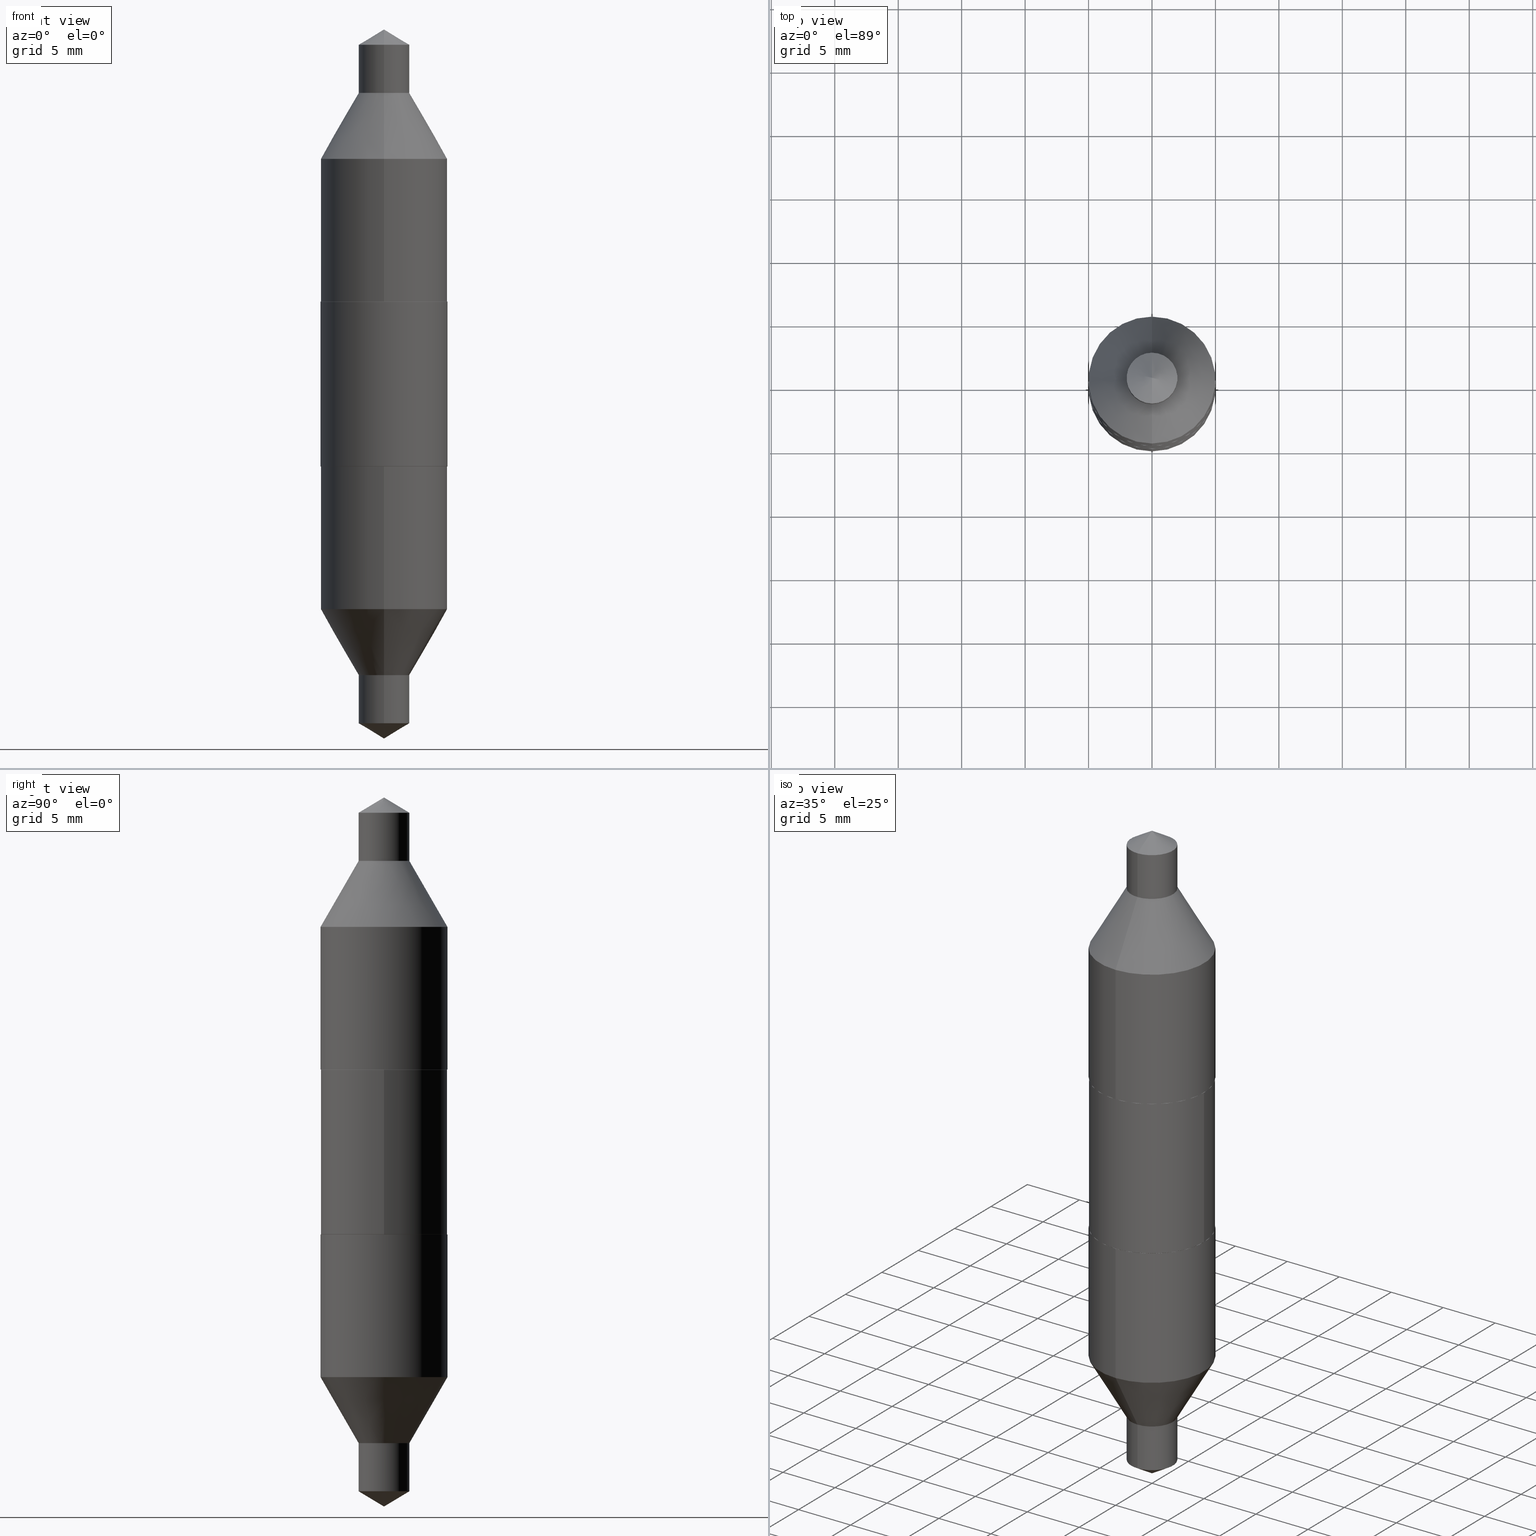
[diagram: canonical four-view strip — front | top / right | iso, engineering-drawing reading convention]
A machine part, canonical four-view strip (front | top / right | iso — engineering-drawing reading convention). The complete STEP part file that produces these views, byte-faithful:
ISO-10303-21;
HEADER;
FILE_DESCRIPTION (( 'STEP AP203' ),
    '1' );
FILE_NAME ('67051.STEP',
    '2024-04-19T15:18:13',
    ( '' ),
    ( '' ),
    'SwSTEP 2.0',
    'SolidWorks 2023',
    '' );
FILE_SCHEMA (( 'CONFIG_CONTROL_DESIGN' ));
ENDSEC;

DATA;
#1 = EDGE_LOOP ( 'NONE', ( #16, #548, #135 ) ) ;
#2 = LINE ( 'NONE', #488, #254 ) ;
#3 = ORIENTED_EDGE ( 'NONE', *, *, #476, .T. ) ;
#4 = ORIENTED_EDGE ( 'NONE', *, *, #221, .F. ) ;
#5 = CIRCLE ( 'NONE', #91, 0.1968500000000000250 ) ;
#6 = DIRECTION ( 'NONE',  ( 2.459654028991430125E-29, -3.471167292411791598E-15, -1.000000000000000000 ) ) ;
#7 = AXIS2_PLACEMENT_3D ( 'NONE', #563, #497, #79 ) ;
#8 = ORIENTED_EDGE ( 'NONE', *, *, #673, .T. ) ;
#9 = VERTEX_POINT ( 'NONE', #255 ) ;
#10 = DIRECTION ( 'NONE',  ( -6.982962677686265922E-15, -1.000000000000000000, 3.469453890861393995E-15 ) ) ;
#11 = FACE_OUTER_BOUND ( 'NONE', #283, .T. ) ;
#12 = ORIENTED_EDGE ( 'NONE', *, *, #15, .T. ) ;
#13 = ORIENTED_EDGE ( 'NONE', *, *, #15, .F. ) ;
#14 = FACE_OUTER_BOUND ( 'NONE', #297, .T. ) ;
#15 = EDGE_CURVE ( 'NONE', #607, #173, #60, .T. ) ;
#16 = ORIENTED_EDGE ( 'NONE', *, *, #78, .F. ) ;
#17 = VECTOR ( 'NONE', #628, 39.37007874015748143 ) ;
#18 = AXIS2_PLACEMENT_3D ( 'NONE', #554, #507, #349 ) ;
#19 = CARTESIAN_POINT ( 'NONE',  ( 1.398703375343769621E-15, 0.1968499999999977212, -0.6985447996261132664 ) ) ;
#20 = EDGE_CURVE ( 'NONE', #188, #33, #371, .T. ) ;
#21 = LINE ( 'NONE', #286, #561 ) ;
#22 = EDGE_CURVE ( 'NONE', #611, #684, #425, .T. ) ;
#23 = DIRECTION ( 'NONE',  ( 2.459654028991429845E-29, -3.471167292411791598E-15, -1.000000000000000000 ) ) ;
#24 = EDGE_LOOP ( 'NONE', ( #59, #511, #500, #215 ) ) ;
#25 = CALENDAR_DATE ( 2024, 19, 4 ) ;
#26 = FACE_OUTER_BOUND ( 'NONE', #24, .T. ) ;
#27 = CARTESIAN_POINT ( 'NONE',  ( -1.714547113792967986E-29, 2.429966256632936754E-15, 0.6985447996261126002 ) ) ;
#28 = ADVANCED_FACE ( 'NONE', ( #448 ), #179, .T. ) ;
#29 = CARTESIAN_POINT ( 'NONE',  ( -0.1963500000000000800, 5.013314389211111688E-16, -0.2560000000000002274 ) ) ;
#30 = CIRCLE ( 'NONE', #578, 0.07875000000000001443 ) ;
#31 = ORIENTED_EDGE ( 'NONE', *, *, #37, .F. ) ;
#32 = CARTESIAN_POINT ( 'NONE',  ( 0.1963500000000000800, -2.264923944507545110E-15, -0.2560000000000002274 ) ) ;
#33 = VERTEX_POINT ( 'NONE', #333 ) ;
#34 = CARTESIAN_POINT ( 'NONE',  ( -2.585602662008955522E-29, 3.659236508954140551E-15, 1.052682226251580033 ) ) ;
#35 = DIRECTION ( 'NONE',  ( -2.445468806185136597E-29, 3.491481338843145583E-15, 1.000000000000000000 ) ) ;
#36 = DIRECTION ( 'NONE',  ( -2.445468806185136597E-29, 3.491481338843145583E-15, 1.000000000000000000 ) ) ;
#37 = EDGE_CURVE ( 'NONE', #640, #199, #227, .T. ) ;
#38 = CARTESIAN_POINT ( 'NONE',  ( 0.1963500000000000800, -2.264923944507545110E-15, -0.2560000000000002274 ) ) ;
#39 = DIRECTION ( 'NONE',  ( 3.552713678800443343E-15, 0.4999999999999979461, 0.8660254037844399289 ) ) ;
#40 = ADVANCED_FACE ( 'NONE', ( #11 ), #663, .T. ) ;
#41 = AXIS2_PLACEMENT_3D ( 'NONE', #71, #172, #63 ) ;
#42 = ORIENTED_EDGE ( 'NONE', *, *, #660, .F. ) ;
#43 = DIRECTION ( 'NONE',  ( 1.000000000000000000, -6.982962677686266711E-15, 0.000000000000000000 ) ) ;
#44 = ORIENTED_EDGE ( 'NONE', *, *, #89, .T. ) ;
#45 = ORIENTED_EDGE ( 'NONE', *, *, #364, .F. ) ;
#46 = DIRECTION ( 'NONE',  ( -2.459654028991429845E-29, 3.471167292411791598E-15, 1.000000000000000000 ) ) ;
#47 = VERTEX_POINT ( 'NONE', #98 ) ;
#48 = ADVANCED_FACE ( 'NONE', ( #273 ), #157, .T. ) ;
#49 = DIRECTION ( 'NONE',  ( -2.459654028991429285E-29, 3.471167292411791598E-15, 1.000000000000000000 ) ) ;
#50 = DIRECTION ( 'NONE',  ( -5.985567269335953901E-15, -0.8571673007021122226, 0.5150380749100544886 ) ) ;
#51 = VECTOR ( 'NONE', #316, 39.37007874015748854 ) ;
#52 =( GEOMETRIC_REPRESENTATION_CONTEXT ( 3 ) GLOBAL_UNCERTAINTY_ASSIGNED_CONTEXT ( ( #312 ) ) GLOBAL_UNIT_ASSIGNED_CONTEXT ( ( #606, #666, #241 ) ) REPRESENTATION_CONTEXT ( 'NONE', 'WORKASPACE' ) );
#53 = FACE_OUTER_BOUND ( 'NONE', #287, .T. ) ;
#54 = CARTESIAN_POINT ( 'NONE',  ( 6.260400143833955248E-30, -8.938192227438461148E-16, -0.2560000000000002274 ) ) ;
#55 = CALENDAR_DATE ( 2024, 19, 4 ) ;
#56 = DIRECTION ( 'NONE',  ( 2.431283583378843068E-29, -3.511795385274499567E-15, -1.000000000000000000 ) ) ;
#57 = VERTEX_POINT ( 'NONE', #433 ) ;
#58 = DIRECTION ( 'NONE',  ( -2.431283583378843348E-29, 3.511795385274499567E-15, 1.000000000000000000 ) ) ;
#59 = ORIENTED_EDGE ( 'NONE', *, *, #37, .T. ) ;
#60 = CIRCLE ( 'NONE', #265, 0.07875000000000000056 ) ;
#61 = CONICAL_SURFACE ( 'NONE', #113, 0.07875000000000000056, 0.5235987755982929315 ) ;
#62 = LINE ( 'NONE', #156, #432 ) ;
#63 = DIRECTION ( 'NONE',  ( -6.982962677686264344E-15, -1.000000000000000000, 3.469013325287953293E-15 ) ) ;
#64 = EDGE_CURVE ( 'NONE', #65, #57, #280, .T. ) ;
#65 = VERTEX_POINT ( 'NONE', #483 ) ;
#66 = CARTESIAN_POINT ( 'NONE',  ( 6.571296279605704530E-30, -8.492971265904178763E-16, -0.2560000000000002829 ) ) ;
#67 = ORIENTED_EDGE ( 'NONE', *, *, #510, .F. ) ;
#68 = EDGE_CURVE ( 'NONE', #65, #332, #419, .T. ) ;
#69 = CARTESIAN_POINT ( 'NONE',  ( 2.674411941716728216E-29, -3.862974923801950273E-15, -1.100000000000000089 ) ) ;
#70 = ADVANCED_BREP_SHAPE_REPRESENTATION ( '67051', ( #123, #583, #112, #18 ), #52 ) ;
#71 = CARTESIAN_POINT ( 'NONE',  ( 2.199323621187845058E-29, -3.166302016554974443E-15, -0.9031000000000001249 ) ) ;
#72 = ORIENTED_EDGE ( 'NONE', *, *, #64, .T. ) ;
#73 = LOCAL_TIME ( 11, 18, 13.00000000000000000, #263 ) ;
#74 = CARTESIAN_POINT ( 'NONE',  ( -2.217682136543749536E-29, 3.140011577663515512E-15, 0.9031000000000001249 ) ) ;
#75 = ORIENTED_EDGE ( 'NONE', *, *, #186, .F. ) ;
#76 = PERSON_AND_ORGANIZATION ( #484, #647 ) ;
#77 = CARTESIAN_POINT ( 'NONE',  ( -6.260400143833954547E-30, 8.938192227438459176E-16, 0.2560000000000002274 ) ) ;
#78 = EDGE_CURVE ( 'NONE', #579, #106, #525, .T. ) ;
#79 = DIRECTION ( 'NONE',  ( -6.982962677686264344E-15, -1.000000000000000000, 3.469013325287953293E-15 ) ) ;
#80 = CARTESIAN_POINT ( 'NONE',  ( -6.260400143833955248E-30, 8.938192227438461148E-16, 0.2560000000000002274 ) ) ;
#81 = AXIS2_PLACEMENT_3D ( 'NONE', #521, #35, #496 ) ;
#82 = FACE_OUTER_BOUND ( 'NONE', #623, .T. ) ;
#83 = CIRCLE ( 'NONE', #616, 0.1963500000000000800 ) ;
#84 = CC_DESIGN_APPROVAL ( #266, ( #243 ) ) ;
#85 = VECTOR ( 'NONE', #556, 39.37007874015748854 ) ;
#86 = APPROVAL ( #588, 'UNSPECIFIED' ) ;
#87 = CARTESIAN_POINT ( 'NONE',  ( 0.1968500000000000527, -2.266669685176966220E-15, -0.2555000000000003380 ) ) ;
#88 = CARTESIAN_POINT ( 'NONE',  ( 5.595524044111006926E-16, 0.07874999999999683642, -0.9031000000000003469 ) ) ;
#89 = EDGE_CURVE ( 'NONE', #644, #435, #124, .T. ) ;
#90 = DIRECTION ( 'NONE',  ( 2.459654028991429845E-29, -3.471167292411791598E-15, -1.000000000000000000 ) ) ;
#91 = AXIS2_PLACEMENT_3D ( 'NONE', #249, #134, #680 ) ;
#92 = AXIS2_PLACEMENT_3D ( 'NONE', #573, #414, #369 ) ;
#93 = APPROVAL_PERSON_ORGANIZATION ( #154, #266, #534 ) ;
#94 = CALENDAR_DATE ( 2024, 19, 4 ) ;
#95 = ORIENTED_EDGE ( 'NONE', *, *, #325, .T. ) ;
#96 = CARTESIAN_POINT ( 'NONE',  ( -2.217682136543749536E-29, 3.140011577663515512E-15, 0.9031000000000001249 ) ) ;
#97 = APPROVAL_ROLE ( '' ) ;
#98 = CARTESIAN_POINT ( 'NONE',  ( 5.595524044111044397E-16, 0.07874999999999632294, -1.052682226251580477 ) ) ;
#99 = EDGE_CURVE ( 'NONE', #417, #125, #5, .T. ) ;
#100 = CARTESIAN_POINT ( 'NONE',  ( 0.000000000000000000, 0.000000000000000000, 0.000000000000000000 ) ) ;
#101 = PERSON_AND_ORGANIZATION_ROLE ( 'design_supplier' ) ;
#102 = DIRECTION ( 'NONE',  ( -6.982962677686265133E-15, -1.000000000000000000, 3.469453890861392812E-15 ) ) ;
#103 = AXIS2_PLACEMENT_3D ( 'NONE', #566, #301, #515 ) ;
#104 = CARTESIAN_POINT ( 'NONE',  ( -1.374596203102559949E-15, -0.1968499999999977490, 0.6985447996261132664 ) ) ;
#105 = PRODUCT_RELATED_PRODUCT_CATEGORY ( 'detail', '', ( #428 ) ) ;
#106 = VERTEX_POINT ( 'NONE', #465 ) ;
#107 = DIRECTION ( 'NONE',  ( -2.438088387897960049E-29, 3.491481338843145188E-15, 1.000000000000000000 ) ) ;
#108 = EDGE_CURVE ( 'NONE', #472, #121, #490, .T. ) ;
#109 = ORIENTED_EDGE ( 'NONE', *, *, #660, .T. ) ;
#110 = CARTESIAN_POINT ( 'NONE',  ( 1.350489030861320696E-15, 0.1968500000000026340, 0.6985447996261119341 ) ) ;
#111 = ORIENTED_EDGE ( 'NONE', *, *, #155, .T. ) ;
#112 = MANIFOLD_SOLID_BREP ( 'Body-Move/Copy2[3]', #455 ) ;
#113 = AXIS2_PLACEMENT_3D ( 'NONE', #126, #513, #454 ) ;
#114 = ORIENTED_EDGE ( 'NONE', *, *, #137, .F. ) ;
#115 = ORIENTED_EDGE ( 'NONE', *, *, #614, .F. ) ;
#116 = EDGE_CURVE ( 'NONE', #684, #9, #202, .T. ) ;
#117 = CARTESIAN_POINT ( 'NONE',  ( -1.374596203102547722E-15, -0.1968499999999991368, 0.2560000000000009490 ) ) ;
#118 = ORIENTED_EDGE ( 'NONE', *, *, #651, .F. ) ;
#119 = LINE ( 'NONE', #29, #347 ) ;
#120 = ORIENTED_EDGE ( 'NONE', *, *, #642, .T. ) ;
#121 = VERTEX_POINT ( 'NONE', #38 ) ;
#122 = CARTESIAN_POINT ( 'NONE',  ( 1.398703375343764099E-15, 0.1968499999999992200, -0.2560000000000008935 ) ) ;
#123 = MANIFOLD_SOLID_BREP ( 'Body-Move/Copy2[1]', #568 ) ;
#124 = CIRCLE ( 'NONE', #315, 0.1963500000000000800 ) ;
#125 = VERTEX_POINT ( 'NONE', #415 ) ;
#126 = CARTESIAN_POINT ( 'NONE',  ( -2.217682136543749536E-29, 3.140011577663515512E-15, 0.9031000000000001249 ) ) ;
#127 = FACE_OUTER_BOUND ( 'NONE', #339, .T. ) ;
#128 = DIRECTION ( 'NONE',  ( -0.7071067811865715536, 7.493145998870439357E-15, 0.7071067811865232589 ) ) ;
#129 = CARTESIAN_POINT ( 'NONE',  ( -6.260400143833956649E-30, 8.938192227438463120E-16, 0.2560000000000002829 ) ) ;
#130 = DIRECTION ( 'NONE',  ( -6.982962677686264344E-15, -1.000000000000000000, 3.469013325287953293E-15 ) ) ;
#131 = CARTESIAN_POINT ( 'NONE',  ( 0.1968500000000000527, -1.374596203102542003E-15, 9.598753983154302260E-30 ) ) ;
#132 = AXIS2_PLACEMENT_3D ( 'NONE', #567, #398, #181 ) ;
#133 = AXIS2_PLACEMENT_3D ( 'NONE', #209, #49, #426 ) ;
#134 = DIRECTION ( 'NONE',  ( -2.431283583378843348E-29, 3.511795385274499567E-15, 1.000000000000000000 ) ) ;
#135 = ORIENTED_EDGE ( 'NONE', *, *, #487, .T. ) ;
#136 = EDGE_CURVE ( 'NONE', #236, #593, #142, .T. ) ;
#137 = EDGE_CURVE ( 'NONE', #332, #380, #193, .T. ) ;
#138 = CARTESIAN_POINT ( 'NONE',  ( 6.248172799803031437E-30, -8.920734820744248085E-16, -0.2555000000000003380 ) ) ;
#139 = DIRECTION ( 'NONE',  ( 1.000000000000000000, -6.982962677686265922E-15, 0.000000000000000000 ) ) ;
#140 = EDGE_LOOP ( 'NONE', ( #498, #475, #394, #118 ) ) ;
#141 = DIRECTION ( 'NONE',  ( -2.445468806185136597E-29, 3.491481338843145583E-15, 1.000000000000000000 ) ) ;
#142 = LINE ( 'NONE', #260, #551 ) ;
#143 = DIRECTION ( 'NONE',  ( -6.982962677686264344E-15, -1.000000000000000000, 3.469013325287952504E-15 ) ) ;
#144 = AXIS2_PLACEMENT_3D ( 'NONE', #310, #473, #196 ) ;
#145 = ORIENTED_EDGE ( 'NONE', *, *, #361, .T. ) ;
#146 = CC_DESIGN_PERSON_AND_ORGANIZATION_ASSIGNMENT ( #586, #101, ( #243 ) ) ;
#147 = CIRCLE ( 'NONE', #203, 0.1968500000000000250 ) ;
#148 = CC_DESIGN_SECURITY_CLASSIFICATION ( #400, ( #243 ) ) ;
#149 = CARTESIAN_POINT ( 'NONE',  ( -0.1968500000000000527, 1.398703375343757590E-15, -9.682923725166785079E-30 ) ) ;
#150 = CARTESIAN_POINT ( 'NONE',  ( 0.1968500000000000527, -4.825227210281171943E-16, 0.2555000000000003380 ) ) ;
#151 = CALENDAR_DATE ( 2024, 19, 4 ) ;
#152 = FACE_OUTER_BOUND ( 'NONE', #250, .T. ) ;
#153 = EDGE_LOOP ( 'NONE', ( #411, #210, #288, #225 ) ) ;
#154 = PERSON_AND_ORGANIZATION ( #484, #647 ) ;
#155 = EDGE_CURVE ( 'NONE', #380, #57, #654, .T. ) ;
#156 = CARTESIAN_POINT ( 'NONE',  ( -5.499083108678155324E-16, -0.07874999999999685030, 0.9031000000000003469 ) ) ;
#157 = CONICAL_SURFACE ( 'NONE', #599, 65.52281426576890055, 1.029744258676657642 ) ;
#158 = AXIS2_PLACEMENT_3D ( 'NONE', #615, #509, #564 ) ;
#159 = AXIS2_PLACEMENT_3D ( 'NONE', #600, #480, #10 ) ;
#160 = EDGE_CURVE ( 'NONE', #644, #380, #378, .T. ) ;
#161 = LINE ( 'NONE', #327, #670 ) ;
#162 = DIRECTION ( 'NONE',  ( 6.982962677686265922E-15, 1.000000000000000000, -3.511795385274499567E-15 ) ) ;
#163 = ORIENTED_EDGE ( 'NONE', *, *, #553, .F. ) ;
#164 = DIRECTION ( 'NONE',  ( -6.982962677686264344E-15, -1.000000000000000000, 3.469013325287952504E-15 ) ) ;
#165 = ORIENTED_EDGE ( 'NONE', *, *, #542, .F. ) ;
#166 = ADVANCED_FACE ( 'NONE', ( #53 ), #456, .T. ) ;
#167 = CIRCLE ( 'NONE', #635, 0.07875000000000001443 ) ;
#168 = ORIENTED_EDGE ( 'NONE', *, *, #208, .T. ) ;
#169 = DIRECTION ( 'NONE',  ( -1.000000000000000000, 6.982962677686265922E-15, -4.876176775795935793E-29 ) ) ;
#170 = ORIENTED_EDGE ( 'NONE', *, *, #89, .F. ) ;
#171 = DIRECTION ( 'NONE',  ( -2.445468806185136597E-29, 3.491481338843145583E-15, 1.000000000000000000 ) ) ;
#172 = DIRECTION ( 'NONE',  ( -2.431283583378843348E-29, 3.511795385274499567E-15, 1.000000000000000000 ) ) ;
#173 = VERTEX_POINT ( 'NONE', #442 ) ;
#174 = LINE ( 'NONE', #295, #305 ) ;
#175 = CARTESIAN_POINT ( 'NONE',  ( 6.260400143833954547E-30, -8.938192227438459176E-16, -0.2560000000000002274 ) ) ;
#176 = CC_DESIGN_DATE_AND_TIME_ASSIGNMENT ( #303, #633, ( #400 ) ) ;
#177 = ORIENTED_EDGE ( 'NONE', *, *, #559, .T. ) ;
#178 = DIRECTION ( 'NONE',  ( 1.000000000000000000, -6.982962677686266711E-15, 0.000000000000000000 ) ) ;
#179 = CONICAL_SURFACE ( 'NONE', #251, 0.1963500000000000800, 0.7853981633974824739 ) ;
#180 = CC_DESIGN_APPROVAL ( #86, ( #400 ) ) ;
#181 = DIRECTION ( 'NONE',  ( -6.982962677686264344E-15, -1.000000000000000000, 3.469013325287952504E-15 ) ) ;
#182 = PERSON_AND_ORGANIZATION ( #484, #647 ) ;
#183 = CARTESIAN_POINT ( 'NONE',  ( -2.585602662008955522E-29, 3.659236508954140551E-15, 1.052682226251580033 ) ) ;
#184 = EDGE_CURVE ( 'NONE', #125, #417, #147, .T. ) ;
#185 = DIRECTION ( 'NONE',  ( -6.982962677686263555E-15, -1.000000000000000000, 3.468864327941569365E-15 ) ) ;
#186 = EDGE_CURVE ( 'NONE', #121, #472, #83, .T. ) ;
#187 = DIMENSIONAL_EXPONENTS ( 1.000000000000000000, 0.000000000000000000, 0.000000000000000000, 0.000000000000000000, 0.000000000000000000, 0.000000000000000000, 0.000000000000000000 ) ;
#188 = VERTEX_POINT ( 'NONE', #69 ) ;
#189 = VECTOR ( 'NONE', #686, 39.37007874015749564 ) ;
#190 = LINE ( 'NONE', #363, #526 ) ;
#191 = CONICAL_SURFACE ( 'NONE', #681, 65.52281426576890055, 1.029744258676657642 ) ;
#192 = VECTOR ( 'NONE', #58, 39.37007874015748143 ) ;
#193 = LINE ( 'NONE', #131, #240 ) ;
#194 = FACE_OUTER_BOUND ( 'NONE', #532, .T. ) ;
#195 = EDGE_LOOP ( 'NONE', ( #44, #3 ) ) ;
#196 = DIRECTION ( 'NONE',  ( -6.982962677686265133E-15, -1.000000000000000000, 3.469453890861395573E-15 ) ) ;
#197 = CC_DESIGN_PERSON_AND_ORGANIZATION_ASSIGNMENT ( #259, #630, ( #400 ) ) ;
#198 = CARTESIAN_POINT ( 'NONE',  ( -6.260400143833954547E-30, 8.938192227438459176E-16, 0.2560000000000002274 ) ) ;
#199 = VERTEX_POINT ( 'NONE', #19 ) ;
#200 = DATE_AND_TIME ( #94, #294 ) ;
#201 = CARTESIAN_POINT ( 'NONE',  ( -6.260400143833955248E-30, 8.938192227438461148E-16, 0.2560000000000002274 ) ) ;
#202 = CIRCLE ( 'NONE', #144, 0.1968500000000000250 ) ;
#203 = AXIS2_PLACEMENT_3D ( 'NONE', #352, #555, #658 ) ;
#204 = CARTESIAN_POINT ( 'NONE',  ( 6.248172799803031437E-30, -8.920734820744248085E-16, -0.2555000000000003380 ) ) ;
#205 = DIRECTION ( 'NONE',  ( -2.445468806185136597E-29, 3.491481338843145583E-15, 1.000000000000000000 ) ) ;
#206 = ORIENTED_EDGE ( 'NONE', *, *, #409, .T. ) ;
#207 = COORDINATED_UNIVERSAL_TIME_OFFSET ( 5, 0, .BEHIND. ) ;
#208 = EDGE_CURVE ( 'NONE', #106, #321, #174, .T. ) ;
#209 = CARTESIAN_POINT ( 'NONE',  ( -6.880613059849022494E-30, 8.050012031377942843E-16, 0.2560000000000002274 ) ) ;
#210 = ORIENTED_EDGE ( 'NONE', *, *, #211, .T. ) ;
#211 = EDGE_CURVE ( 'NONE', #472, #65, #119, .T. ) ;
#212 = CARTESIAN_POINT ( 'NONE',  ( -5.949504008062207368E-30, 9.383413188972745506E-16, 0.2560000000000002829 ) ) ;
#213 = CIRCLE ( 'NONE', #445, 0.1968500000000001915 ) ;
#214 = AXIS2_PLACEMENT_3D ( 'NONE', #437, #652, #164 ) ;
#215 = ORIENTED_EDGE ( 'NONE', *, *, #522, .F. ) ;
#216 = FACE_OUTER_BOUND ( 'NONE', #575, .T. ) ;
#217 = ORIENTED_EDGE ( 'NONE', *, *, #392, .F. ) ;
#218 = ORIENTED_EDGE ( 'NONE', *, *, #221, .T. ) ;
#219 = DIRECTION ( 'NONE',  ( 1.000000000000000000, -6.982962677686266711E-15, 0.000000000000000000 ) ) ;
#220 = CARTESIAN_POINT ( 'NONE',  ( -1.374596203102525634E-15, -0.1968500000000026340, -0.6985447996261119341 ) ) ;
#221 = EDGE_CURVE ( 'NONE', #9, #684, #443, .T. ) ;
#222 = EDGE_LOOP ( 'NONE', ( #650, #691, #459, #163 ) ) ;
#223 = PERSON_AND_ORGANIZATION_ROLE ( 'design_owner' ) ;
#224 = ORIENTED_EDGE ( 'NONE', *, *, #662, .T. ) ;
#225 = ORIENTED_EDGE ( 'NONE', *, *, #444, .F. ) ;
#226 = CARTESIAN_POINT ( 'NONE',  ( 2.199323621187845058E-29, -3.166302016554974443E-15, -0.9031000000000001249 ) ) ;
#227 = CIRCLE ( 'NONE', #385, 0.1968500000000001915 ) ;
#228 = CONICAL_SURFACE ( 'NONE', #580, 65.52281426576890055, 1.029744258676657642 ) ;
#229 = PLANE ( 'NONE',  #604 ) ;
#230 = ORIENTED_EDGE ( 'NONE', *, *, #20, .F. ) ;
#231 = DIRECTION ( 'NONE',  ( 1.000000000000000000, -6.982962677686265922E-15, 0.000000000000000000 ) ) ;
#232 = CC_DESIGN_PERSON_AND_ORGANIZATION_ASSIGNMENT ( #182, #300, ( #610 ) ) ;
#233 = DIRECTION ( 'NONE',  ( -3.491481338843117578E-15, -0.4999999999999917843, 0.8660254037844432595 ) ) ;
#234 = EDGE_LOOP ( 'NONE', ( #439, #72, #536, #114 ) ) ;
#235 = DIRECTION ( 'NONE',  ( 2.459654028991430125E-29, -3.471167292411791598E-15, -1.000000000000000000 ) ) ;
#236 = VERTEX_POINT ( 'NONE', #350 ) ;
#237 = ADVANCED_FACE ( 'NONE', ( #26 ), #391, .T. ) ;
#238 = DATE_AND_TIME ( #25, #528 ) ;
#239 = FACE_OUTER_BOUND ( 'NONE', #284, .T. ) ;
#240 = VECTOR ( 'NONE', #359, 39.37007874015748143 ) ;
#241 =( NAMED_UNIT ( * ) SI_UNIT ( $, .STERADIAN. ) SOLID_ANGLE_UNIT ( ) );
#242 = VECTOR ( 'NONE', #292, 39.37007874015748143 ) ;
#243 = PRODUCT_DEFINITION_FORMATION_WITH_SPECIFIED_SOURCE ( 'ANY', '', #428, .NOT_KNOWN. ) ;
#244 = DIRECTION ( 'NONE',  ( 2.459654028991429845E-29, -3.471167292411791598E-15, -1.000000000000000000 ) ) ;
#245 = DIRECTION ( 'NONE',  ( -6.982962677686265922E-15, -1.000000000000000000, 3.469453890861393995E-15 ) ) ;
#246 = EDGE_CURVE ( 'NONE', #199, #125, #612, .T. ) ;
#247 = ORIENTED_EDGE ( 'NONE', *, *, #700, .T. ) ;
#248 = DIRECTION ( 'NONE',  ( -6.982962677686264344E-15, -1.000000000000000000, 3.469013325287952504E-15 ) ) ;
#249 = CARTESIAN_POINT ( 'NONE',  ( 6.260400143833956649E-30, -8.938192227438463120E-16, -0.2560000000000002829 ) ) ;
#250 = EDGE_LOOP ( 'NONE', ( #440, #653 ) ) ;
#251 = AXIS2_PLACEMENT_3D ( 'NONE', #492, #285, #219 ) ;
#252 = CARTESIAN_POINT ( 'NONE',  ( 2.563000432238571047E-29, -3.691604188424359508E-15, -1.052682226251580033 ) ) ;
#253 = AXIS2_PLACEMENT_3D ( 'NONE', #34, #46, #248 ) ;
#254 = VECTOR ( 'NONE', #6, 39.37007874015748143 ) ;
#255 = CARTESIAN_POINT ( 'NONE',  ( 1.350489030861314385E-15, 0.1968500000000009131, 0.2559999999999996168 ) ) ;
#256 = ADVANCED_FACE ( 'NONE', ( #239 ), #341, .T. ) ;
#257 = EDGE_LOOP ( 'NONE', ( #397, #519, #168, #585 ) ) ;
#258 = CARTESIAN_POINT ( 'NONE',  ( -6.260400143833954547E-30, 8.938192227438459176E-16, 0.2560000000000002274 ) ) ;
#259 = PERSON_AND_ORGANIZATION ( #484, #647 ) ;
#260 = CARTESIAN_POINT ( 'NONE',  ( 5.402642173244858016E-16, 0.07875000000000313694, 0.9030999999999999028 ) ) ;
#261 = FACE_OUTER_BOUND ( 'NONE', #1, .T. ) ;
#262 = DIRECTION ( 'NONE',  ( -2.431283583378843348E-29, 3.511795385274499567E-15, 1.000000000000000000 ) ) ;
#263 = COORDINATED_UNIVERSAL_TIME_OFFSET ( 5, 0, .BEHIND. ) ;
#264 = DIRECTION ( 'NONE',  ( 1.000000000000000000, -6.982962677686266711E-15, 0.000000000000000000 ) ) ;
#265 = AXIS2_PLACEMENT_3D ( 'NONE', #537, #262, #478 ) ;
#266 = APPROVAL ( #530, 'UNSPECIFIED' ) ;
#267 = CONICAL_SURFACE ( 'NONE', #399, 0.07875000000000000056, 0.5235987755982929315 ) ;
#268 = CC_DESIGN_APPROVAL ( #461, ( #610 ) ) ;
#269 = DIRECTION ( 'NONE',  ( 2.459654028991430125E-29, -3.471167292411791598E-15, -1.000000000000000000 ) ) ;
#270 = CARTESIAN_POINT ( 'NONE',  ( 5.640187227818888703E-30, -9.826372423498979453E-16, -0.2560000000000002274 ) ) ;
#271 = ADVANCED_FACE ( 'NONE', ( #558 ), #669, .T. ) ;
#272 = DATE_AND_TIME ( #55, #73 ) ;
#273 = FACE_OUTER_BOUND ( 'NONE', #557, .T. ) ;
#274 = DIRECTION ( 'NONE',  ( -2.431283583378843348E-29, 3.511795385274499567E-15, 1.000000000000000000 ) ) ;
#275 = EDGE_LOOP ( 'NONE', ( #436, #247, #370, #562 ) ) ;
#276 = DIRECTION ( 'NONE',  ( -2.431283583378843348E-29, 3.511795385274499567E-15, 1.000000000000000000 ) ) ;
#277 = DIRECTION ( 'NONE',  ( -3.491481338843076163E-15, -0.4999999999999978351, -0.8660254037844399289 ) ) ;
#278 = ORIENTED_EDGE ( 'NONE', *, *, #683, .T. ) ;
#279 = AXIS2_PLACEMENT_3D ( 'NONE', #138, #141, #464 ) ;
#280 = LINE ( 'NONE', #149, #346 ) ;
#281 = CC_DESIGN_DATE_AND_TIME_ASSIGNMENT ( #641, #694, ( #610 ) ) ;
#282 = PLANE ( 'NONE',  #657 ) ;
#283 = EDGE_LOOP ( 'NONE', ( #547, #206, #307, #13 ) ) ;
#284 = EDGE_LOOP ( 'NONE', ( #598, #441, #278, #320 ) ) ;
#285 = DIRECTION ( 'NONE',  ( 2.445468806185136597E-29, -3.491481338843145583E-15, -1.000000000000000000 ) ) ;
#286 = CARTESIAN_POINT ( 'NONE',  ( -5.499083108677714548E-16, -0.07875000000000315081, -0.9030999999999999028 ) ) ;
#287 = EDGE_LOOP ( 'NONE', ( #328, #494, #693 ) ) ;
#288 = ORIENTED_EDGE ( 'NONE', *, *, #413, .F. ) ;
#289 = CARTESIAN_POINT ( 'NONE',  ( 1.701991920624042310E-29, -2.447946007848055488E-15, -0.6985447996261126002 ) ) ;
#290 = FACE_OUTER_BOUND ( 'NONE', #506, .T. ) ;
#291 = ORIENTED_EDGE ( 'NONE', *, *, #522, .T. ) ;
#292 = DIRECTION ( 'NONE',  ( -2.431283583378843348E-29, 3.511795385274499567E-15, 1.000000000000000000 ) ) ;
#293 = ADVANCED_FACE ( 'NONE', ( #354 ), #697, .T. ) ;
#294 = LOCAL_TIME ( 11, 18, 13.00000000000000000, #207 ) ;
#295 = CARTESIAN_POINT ( 'NONE',  ( -5.499083108677997552E-16, -0.07874999999999912625, 0.2560000000000005049 ) ) ;
#296 = ADVANCED_FACE ( 'NONE', ( #82 ), #299, .T. ) ;
#297 = EDGE_LOOP ( 'NONE', ( #527, #12, #8, #217 ) ) ;
#298 = APPROVAL_ROLE ( '' ) ;
#299 = CYLINDRICAL_SURFACE ( 'NONE', #132, 0.07875000000000001443 ) ;
#300 = PERSON_AND_ORGANIZATION_ROLE ( 'creator' ) ;
#301 = DIRECTION ( 'NONE',  ( -2.445468806185136597E-29, 3.491481338843145583E-15, 1.000000000000000000 ) ) ;
#302 = AXIS2_PLACEMENT_3D ( 'NONE', #96, #629, #130 ) ;
#303 = DATE_AND_TIME ( #151, #491 ) ;
#304 = ADVANCED_FACE ( 'NONE', ( #306 ), #61, .T. ) ;
#305 = VECTOR ( 'NONE', #235, 39.37007874015748143 ) ;
#306 = FACE_OUTER_BOUND ( 'NONE', #427, .T. ) ;
#307 = ORIENTED_EDGE ( 'NONE', *, *, #364, .T. ) ;
#308 = CARTESIAN_POINT ( 'NONE',  ( -0.1963500000000000800, 5.039806660952219754E-16, -0.2560000000000002274 ) ) ;
#309 = ORIENTED_EDGE ( 'NONE', *, *, #373, .T. ) ;
#310 = CARTESIAN_POINT ( 'NONE',  ( -6.260400143833956649E-30, 8.938192227438463120E-16, 0.2560000000000002829 ) ) ;
#311 = CYLINDRICAL_SURFACE ( 'NONE', #377, 0.1968500000000000527 ) ;
#312 = UNCERTAINTY_MEASURE_WITH_UNIT (LENGTH_MEASURE( 1.000000000000000082E-05 ), #606, 'distance_accuracy_value', 'NONE');
#313 = ADVANCED_FACE ( 'NONE', ( #14 ), #267, .T. ) ;
#314 = ORIENTED_EDGE ( 'NONE', *, *, #662, .F. ) ;
#315 = AXIS2_PLACEMENT_3D ( 'NONE', #408, #36, #625 ) ;
#316 = DIRECTION ( 'NONE',  ( 0.7071067811865715536, -2.468850131082509496E-15, 0.7071067811865232589 ) ) ;
#317 = ADVANCED_FACE ( 'NONE', ( #619 ), #626, .T. ) ;
#318 = AXIS2_PLACEMENT_3D ( 'NONE', #661, #608, #395 ) ;
#319 = AXIS2_PLACEMENT_3D ( 'NONE', #27, #655, #453 ) ;
#320 = ORIENTED_EDGE ( 'NONE', *, *, #208, .F. ) ;
#321 = VERTEX_POINT ( 'NONE', #672 ) ;
#322 = DIRECTION ( 'NONE',  ( 2.459654028991429845E-29, -3.471167292411791598E-15, -1.000000000000000000 ) ) ;
#323 = ORIENTED_EDGE ( 'NONE', *, *, #78, .T. ) ;
#324 = CARTESIAN_POINT ( 'NONE',  ( -6.248172799803031437E-30, 8.920734820744248085E-16, 0.2555000000000003380 ) ) ;
#325 = EDGE_CURVE ( 'NONE', #106, #331, #167, .T. ) ;
#326 = CARTESIAN_POINT ( 'NONE',  ( 0.000000000000000000, 0.000000000000000000, 0.000000000000000000 ) ) ;
#327 = CARTESIAN_POINT ( 'NONE',  ( 5.595524044110852112E-16, 0.07874999999999912625, -0.2560000000000005049 ) ) ;
#328 = ORIENTED_EDGE ( 'NONE', *, *, #361, .F. ) ;
#329 = DIRECTION ( 'NONE',  ( 1.000000000000000000, -6.982962677686266711E-15, 0.000000000000000000 ) ) ;
#330 = CYLINDRICAL_SURFACE ( 'NONE', #357, 0.1968500000000000527 ) ;
#331 = VERTEX_POINT ( 'NONE', #692 ) ;
#332 = VERTEX_POINT ( 'NONE', #87 ) ;
#333 = CARTESIAN_POINT ( 'NONE',  ( -5.499083108677680035E-16, -0.07875000000000370592, -1.052682226251579811 ) ) ;
#334 = DIRECTION ( 'NONE',  ( -2.445468806185136597E-29, 3.491481338843145583E-15, 1.000000000000000000 ) ) ;
#335 = ORIENTED_EDGE ( 'NONE', *, *, #116, .T. ) ;
#336 = ORIENTED_EDGE ( 'NONE', *, *, #211, .F. ) ;
#337 = ORIENTED_EDGE ( 'NONE', *, *, #444, .T. ) ;
#338 = CIRCLE ( 'NONE', #7, 0.07875000000000000056 ) ;
#339 = EDGE_LOOP ( 'NONE', ( #550, #309, #31, #664 ) ) ;
#340 = ORIENTED_EDGE ( 'NONE', *, *, #642, .F. ) ;
#341 = CYLINDRICAL_SURFACE ( 'NONE', #560, 0.07875000000000001443 ) ;
#342 = DIRECTION ( 'NONE',  ( 2.459654028991430125E-29, -3.471167292411791598E-15, -1.000000000000000000 ) ) ;
#343 = EDGE_LOOP ( 'NONE', ( #613, #4 ) ) ;
#344 = ADVANCED_FACE ( 'NONE', ( #624 ), #311, .T. ) ;
#345 = DIRECTION ( 'NONE',  ( -6.982962677686265133E-15, -1.000000000000000000, 3.469453890861395573E-15 ) ) ;
#346 = VECTOR ( 'NONE', #696, 39.37007874015748143 ) ;
#347 = VECTOR ( 'NONE', #128, 39.37007874015748854 ) ;
#348 = APPROVAL_PERSON_ORGANIZATION ( #76, #461, #298 ) ;
#349 = DIRECTION ( 'NONE',  ( 1.000000000000000000, 0.000000000000000000, 0.000000000000000000 ) ) ;
#350 = CARTESIAN_POINT ( 'NONE',  ( 5.402642173244840266E-16, 0.07875000000000313694, 0.9030999999999999028 ) ) ;
#351 = PERSON_AND_ORGANIZATION ( #484, #647 ) ;
#352 = CARTESIAN_POINT ( 'NONE',  ( 6.260400143833956649E-30, -8.938192227438463120E-16, -0.2560000000000002829 ) ) ;
#353 = EDGE_CURVE ( 'NONE', #321, #236, #656, .T. ) ;
#354 = FACE_OUTER_BOUND ( 'NONE', #275, .T. ) ;
#355 = CIRCLE ( 'NONE', #504, 0.1963500000000000800 ) ;
#356 = EDGE_LOOP ( 'NONE', ( #42, #314, #544, #335 ) ) ;
#357 = AXIS2_PLACEMENT_3D ( 'NONE', #326, #334, #546 ) ;
#358 = DIRECTION ( 'NONE',  ( 6.090539988449790268E-15, 0.8571673007021156643, 0.5150380749100483824 ) ) ;
#359 = DIRECTION ( 'NONE',  ( -2.445468806185136877E-29, 3.491481338843145188E-15, 1.000000000000000000 ) ) ;
#360 = CARTESIAN_POINT ( 'NONE',  ( 6.260400143833955248E-30, -8.938192227438461148E-16, -0.2560000000000002274 ) ) ;
#361 = EDGE_CURVE ( 'NONE', #188, #47, #190, .T. ) ;
#362 = LINE ( 'NONE', #32, #51 ) ;
#363 = CARTESIAN_POINT ( 'NONE',  ( 2.681738462275316564E-29, -3.852574132029096434E-15, -1.100000000000000089 ) ) ;
#364 = EDGE_CURVE ( 'NONE', #33, #173, #412, .T. ) ;
#365 = SHAPE_DEFINITION_REPRESENTATION ( #687, #70 ) ;
#366 = CYLINDRICAL_SURFACE ( 'NONE', #431, 0.1968500000000001082 ) ;
#367 = AXIS2_PLACEMENT_3D ( 'NONE', #80, #665, #178 ) ;
#368 = VECTOR ( 'NONE', #342, 39.37007874015748143 ) ;
#369 = DIRECTION ( 'NONE',  ( -6.982962677686265133E-15, -1.000000000000000000, 3.469453890861392812E-15 ) ) ;
#370 = ORIENTED_EDGE ( 'NONE', *, *, #651, .T. ) ;
#371 = LINE ( 'NONE', #457, #679 ) ;
#372 = PERSON_AND_ORGANIZATION ( #484, #647 ) ;
#373 = EDGE_CURVE ( 'NONE', #607, #199, #678, .T. ) ;
#374 = PLANE ( 'NONE',  #133 ) ;
#375 = COORDINATED_UNIVERSAL_TIME_OFFSET ( 5, 0, .BEHIND. ) ;
#376 = DIRECTION ( 'NONE',  ( -1.000000000000000000, 6.982962677686265922E-15, -4.876176775795935793E-29 ) ) ;
#377 = AXIS2_PLACEMENT_3D ( 'NONE', #100, #676, #474 ) ;
#378 = LINE ( 'NONE', #383, #634 ) ;
#379 = CARTESIAN_POINT ( 'NONE',  ( 2.199323621187845058E-29, -3.166302016554974443E-15, -0.9031000000000001249 ) ) ;
#380 = VERTEX_POINT ( 'NONE', #150 ) ;
#381 = CARTESIAN_POINT ( 'NONE',  ( -2.698420284295517457E-29, 3.828684813425824558E-15, 1.100000000000000089 ) ) ;
#382 = ORIENTED_EDGE ( 'NONE', *, *, #68, .F. ) ;
#383 = CARTESIAN_POINT ( 'NONE',  ( 0.1963500000000000800, -4.772854990198528808E-16, 0.2560000000000002274 ) ) ;
#384 = CARTESIAN_POINT ( 'NONE',  ( 0.1963500000000000800, -4.772854990198528808E-16, 0.2560000000000002274 ) ) ;
#385 = AXIS2_PLACEMENT_3D ( 'NONE', #289, #495, #452 ) ;
#386 = CONICAL_SURFACE ( 'NONE', #41, 0.07875000000000000056, 0.5235987755982929315 ) ;
#387 = CIRCLE ( 'NONE', #214, 0.07875000000000001443 ) ;
#388 = CC_DESIGN_PERSON_AND_ORGANIZATION_ASSIGNMENT ( #351, #223, ( #428 ) ) ;
#389 = EDGE_LOOP ( 'NONE', ( #489, #170, #450, #111 ) ) ;
#390 = DIRECTION ( 'NONE',  ( 2.438088387897960049E-29, -3.491481338843145188E-15, -1.000000000000000000 ) ) ;
#391 = CYLINDRICAL_SURFACE ( 'NONE', #318, 0.1968500000000001082 ) ;
#392 = EDGE_CURVE ( 'NONE', #199, #640, #410, .T. ) ;
#393 = CARTESIAN_POINT ( 'NONE',  ( -0.1963500000000000800, 2.240878004606286822E-15, 0.2560000000000002274 ) ) ;
#394 = ORIENTED_EDGE ( 'NONE', *, *, #137, .T. ) ;
#395 = DIRECTION ( 'NONE',  ( -6.982962677686265922E-15, -1.000000000000000000, 3.469453890861393995E-15 ) ) ;
#396 = DIRECTION ( 'NONE',  ( -2.431283583378843348E-29, 3.511795385274499567E-15, 1.000000000000000000 ) ) ;
#397 = ORIENTED_EDGE ( 'NONE', *, *, #622, .F. ) ;
#398 = DIRECTION ( 'NONE',  ( -2.431283583378843348E-29, 3.511795385274499567E-15, 1.000000000000000000 ) ) ;
#399 = AXIS2_PLACEMENT_3D ( 'NONE', #226, #667, #402 ) ;
#400 = SECURITY_CLASSIFICATION ( '', '', #675 ) ;
#401 = APPLICATION_PROTOCOL_DEFINITION ( 'international standard', 'config_control_design', 1994, #620 ) ;
#402 = DIRECTION ( 'NONE',  ( -6.982962677686264344E-15, -1.000000000000000000, 3.469013325287953293E-15 ) ) ;
#403 = ADVANCED_FACE ( 'NONE', ( #576 ), #689, .T. ) ;
#404 = CALENDAR_DATE ( 2024, 19, 4 ) ;
#405 = DIRECTION ( 'NONE',  ( -2.459654028991429845E-29, 3.471167292411791598E-15, 1.000000000000000000 ) ) ;
#406 = EDGE_LOOP ( 'NONE', ( #67, #109, #218, #486 ) ) ;
#407 = DIRECTION ( 'NONE',  ( -6.982962677686263555E-15, -1.000000000000000000, 3.468864327941569365E-15 ) ) ;
#408 = CARTESIAN_POINT ( 'NONE',  ( -6.260400143833955248E-30, 8.938192227438461148E-16, 0.2560000000000002274 ) ) ;
#409 = EDGE_CURVE ( 'NONE', #47, #33, #30, .T. ) ;
#410 = CIRCLE ( 'NONE', #92, 0.1968500000000001915 ) ;
#411 = ORIENTED_EDGE ( 'NONE', *, *, #186, .T. ) ;
#412 = LINE ( 'NONE', #416, #17 ) ;
#413 = EDGE_CURVE ( 'NONE', #332, #65, #421, .T. ) ;
#414 = DIRECTION ( 'NONE',  ( -2.431283583378843348E-29, 3.511795385274499567E-15, 1.000000000000000000 ) ) ;
#415 = CARTESIAN_POINT ( 'NONE',  ( 1.398703375343774354E-15, 0.1968499999999990813, -0.2560000000000009490 ) ) ;
#416 = CARTESIAN_POINT ( 'NONE',  ( -5.499083108677872320E-16, -0.07875000000000090261, -0.2559999999999999498 ) ) ;
#417 = VERTEX_POINT ( 'NONE', #584 ) ;
#418 = PERSON_AND_ORGANIZATION_ROLE ( 'creator' ) ;
#419 = CIRCLE ( 'NONE', #601, 0.1968500000000000527 ) ;
#420 = CARTESIAN_POINT ( 'NONE',  ( 9.413478478008603382E-28, -1.328366452049720735E-13, -38.27007874015748001 ) ) ;
#421 = CIRCLE ( 'NONE', #279, 0.1968500000000000527 ) ;
#422 = ADVANCED_FACE ( 'NONE', ( #194 ), #191, .T. ) ;
#423 = DIRECTION ( 'NONE',  ( -2.445468806185136597E-29, 3.491481338843145583E-15, 1.000000000000000000 ) ) ;
#424 = FACE_OUTER_BOUND ( 'NONE', #195, .T. ) ;
#425 = LINE ( 'NONE', #471, #479 ) ;
#426 = DIRECTION ( 'NONE',  ( 6.982962677686265922E-15, 1.000000000000000000, -3.471167292411791598E-15 ) ) ;
#427 = EDGE_LOOP ( 'NONE', ( #603, #677, #605, #224 ) ) ;
#428 = PRODUCT ( '67051', '67051', '', ( #446 ) ) ;
#429 = CC_DESIGN_PERSON_AND_ORGANIZATION_ASSIGNMENT ( #372, #418, ( #243 ) ) ;
#430 = PLANE ( 'NONE',  #627 ) ;
#431 = AXIS2_PLACEMENT_3D ( 'NONE', #581, #322, #245 ) ;
#432 = VECTOR ( 'NONE', #277, 39.37007874015748854 ) ;
#433 = CARTESIAN_POINT ( 'NONE',  ( -0.1968500000000000527, 1.398703375343757590E-15, 0.2555000000000003380 ) ) ;
#434 = LINE ( 'NONE', #595, #192 ) ;
#435 = VERTEX_POINT ( 'NONE', #533 ) ;
#436 = ORIENTED_EDGE ( 'NONE', *, *, #476, .F. ) ;
#437 = CARTESIAN_POINT ( 'NONE',  ( 2.563000432238571047E-29, -3.691604188424359508E-15, -1.052682226251580033 ) ) ;
#438 = ORIENTED_EDGE ( 'NONE', *, *, #108, .F. ) ;
#439 = ORIENTED_EDGE ( 'NONE', *, *, #413, .T. ) ;
#440 = ORIENTED_EDGE ( 'NONE', *, *, #99, .T. ) ;
#441 = ORIENTED_EDGE ( 'NONE', *, *, #622, .T. ) ;
#442 = CARTESIAN_POINT ( 'NONE',  ( -5.499083108677714548E-16, -0.07875000000000315081, -0.9030999999999999028 ) ) ;
#443 = CIRCLE ( 'NONE', #516, 0.1968500000000000250 ) ;
#444 = EDGE_CURVE ( 'NONE', #121, #332, #362, .T. ) ;
#445 = AXIS2_PLACEMENT_3D ( 'NONE', #649, #549, #102 ) ;
#446 = MECHANICAL_CONTEXT ( 'NONE', #462, 'mechanical' ) ;
#447 = CARTESIAN_POINT ( 'NONE',  ( 6.260400143833955248E-30, -8.938192227438461148E-16, -0.2560000000000002274 ) ) ;
#448 = FACE_OUTER_BOUND ( 'NONE', #389, .T. ) ;
#449 =( LENGTH_UNIT ( ) NAMED_UNIT ( * ) SI_UNIT ( $, .METRE. ) );
#450 = ORIENTED_EDGE ( 'NONE', *, *, #160, .T. ) ;
#451 = DIRECTION ( 'NONE',  ( -6.982962677686264344E-15, -1.000000000000000000, 3.469013325287952504E-15 ) ) ;
#452 = DIRECTION ( 'NONE',  ( -6.982962677686265133E-15, -1.000000000000000000, 3.469453890861392812E-15 ) ) ;
#453 = DIRECTION ( 'NONE',  ( -6.982962677686265133E-15, -1.000000000000000000, 3.469453890861392812E-15 ) ) ;
#454 = DIRECTION ( 'NONE',  ( -6.982962677686264344E-15, -1.000000000000000000, 3.469013325287953293E-15 ) ) ;
#455 = CLOSED_SHELL ( 'NONE', ( #293, #344, #572, #674, #317, #517, #590, #28 ) ) ;
#456 = CONICAL_SURFACE ( 'NONE', #158, 65.52281426576890055, 1.029744258676657642 ) ;
#457 = CARTESIAN_POINT ( 'NONE',  ( 2.674411941716728216E-29, -3.862974923801950273E-15, -1.100000000000000089 ) ) ;
#458 = DIRECTION ( 'NONE',  ( -6.982962677686264344E-15, -1.000000000000000000, 3.469013325287953293E-15 ) ) ;
#459 = ORIENTED_EDGE ( 'NONE', *, *, #510, .T. ) ;
#460 = DIRECTION ( 'NONE',  ( 2.459654028991429845E-29, -3.471167292411791598E-15, -1.000000000000000000 ) ) ;
#461 = APPROVAL ( #565, 'UNSPECIFIED' ) ;
#462 = APPLICATION_CONTEXT ( 'configuration controlled 3d designs of mechanical parts and assemblies' ) ;
#463 = ORIENTED_EDGE ( 'NONE', *, *, #184, .F. ) ;
#464 = DIRECTION ( 'NONE',  ( 1.000000000000000000, -6.982962677686266711E-15, 0.000000000000000000 ) ) ;
#465 = CARTESIAN_POINT ( 'NONE',  ( -5.499083108678193781E-16, -0.07874999999999636457, 1.052682226251580477 ) ) ;
#466 = ADVANCED_FACE ( 'NONE', ( #477 ), #577, .T. ) ;
#467 = CIRCLE ( 'NONE', #253, 0.07875000000000001443 ) ;
#468 = AXIS2_PLACEMENT_3D ( 'NONE', #379, #274, #485 ) ;
#469 = DIRECTION ( 'NONE',  ( 3.430248998885751187E-15, 0.4999999999999918954, -0.8660254037844432595 ) ) ;
#470 = CARTESIAN_POINT ( 'NONE',  ( 9.413478478008603382E-28, -1.328366452049720735E-13, -38.27007874015748001 ) ) ;
#471 = CARTESIAN_POINT ( 'NONE',  ( -1.374596203102548511E-15, -0.1968499999999992200, 0.2560000000000008935 ) ) ;
#472 = VERTEX_POINT ( 'NONE', #308 ) ;
#473 = DIRECTION ( 'NONE',  ( -2.459654028991429845E-29, 3.471167292411791598E-15, 1.000000000000000000 ) ) ;
#474 = DIRECTION ( 'NONE',  ( 1.000000000000000000, -6.982962677686266711E-15, 4.876176775795935793E-29 ) ) ;
#475 = ORIENTED_EDGE ( 'NONE', *, *, #68, .T. ) ;
#476 = EDGE_CURVE ( 'NONE', #435, #644, #355, .T. ) ;
#477 = FACE_OUTER_BOUND ( 'NONE', #257, .T. ) ;
#478 = DIRECTION ( 'NONE',  ( -6.982962677686264344E-15, -1.000000000000000000, 3.469013325287953293E-15 ) ) ;
#479 = VECTOR ( 'NONE', #269, 39.37007874015748143 ) ;
#480 = DIRECTION ( 'NONE',  ( -2.431283583378843348E-29, 3.511795385274499567E-15, 1.000000000000000000 ) ) ;
#481 = FACE_OUTER_BOUND ( 'NONE', #343, .T. ) ;
#482 = ADVANCED_FACE ( 'NONE', ( #520 ), #366, .T. ) ;
#483 = CARTESIAN_POINT ( 'NONE',  ( -0.1968500000000000527, 5.066298932693327820E-16, -0.2555000000000003380 ) ) ;
#484 = PERSON ( 'UNSPECIFIED', 'UNSPECIFIED', 'UNSPECIFIED', ('UNSPECIFIED'), ('UNSPECIFIED'), ('UNSPECIFIED') ) ;
#485 = DIRECTION ( 'NONE',  ( -6.982962677686264344E-15, -1.000000000000000000, 3.469013325287953293E-15 ) ) ;
#486 = ORIENTED_EDGE ( 'NONE', *, *, #22, .F. ) ;
#487 = EDGE_CURVE ( 'NONE', #331, #106, #467, .T. ) ;
#488 = CARTESIAN_POINT ( 'NONE',  ( 5.402642173245019732E-16, 0.07875000000000090261, 0.2559999999999999498 ) ) ;
#489 = ORIENTED_EDGE ( 'NONE', *, *, #700, .F. ) ;
#490 = CIRCLE ( 'NONE', #668, 0.1963500000000000800 ) ;
#491 = LOCAL_TIME ( 11, 18, 13.00000000000000000, #375 ) ;
#492 = CARTESIAN_POINT ( 'NONE',  ( -6.260400143833955248E-30, 8.938192227438461148E-16, 0.2560000000000002274 ) ) ;
#493 = CYLINDRICAL_SURFACE ( 'NONE', #159, 0.1968500000000001082 ) ;
#494 = ORIENTED_EDGE ( 'NONE', *, *, #20, .T. ) ;
#495 = DIRECTION ( 'NONE',  ( -2.431283583378843348E-29, 3.511795385274499567E-15, 1.000000000000000000 ) ) ;
#496 = DIRECTION ( 'NONE',  ( 1.000000000000000000, -6.982962677686266711E-15, 0.000000000000000000 ) ) ;
#497 = DIRECTION ( 'NONE',  ( -2.459654028991429845E-29, 3.471167292411791598E-15, 1.000000000000000000 ) ) ;
#498 = ORIENTED_EDGE ( 'NONE', *, *, #64, .F. ) ;
#499 = ADVANCED_FACE ( 'NONE', ( #261 ), #228, .T. ) ;
#500 = ORIENTED_EDGE ( 'NONE', *, *, #99, .F. ) ;
#501 = LINE ( 'NONE', #393, #85 ) ;
#502 = DIRECTION ( 'NONE',  ( -2.459654028991429845E-29, 3.471167292411791598E-15, 1.000000000000000000 ) ) ;
#503 = AXIS2_PLACEMENT_3D ( 'NONE', #175, #396, #645 ) ;
#504 = AXIS2_PLACEMENT_3D ( 'NONE', #201, #518, #43 ) ;
#505 = CIRCLE ( 'NONE', #319, 0.1968500000000001915 ) ;
#506 = EDGE_LOOP ( 'NONE', ( #75, #438 ) ) ;
#507 = DIRECTION ( 'NONE',  ( 0.000000000000000000, 0.000000000000000000, 1.000000000000000000 ) ) ;
#508 = ORIENTED_EDGE ( 'NONE', *, *, #392, .T. ) ;
#509 = DIRECTION ( 'NONE',  ( -2.431283583378843348E-29, 3.511795385274499567E-15, 1.000000000000000000 ) ) ;
#510 = EDGE_CURVE ( 'NONE', #593, #611, #213, .T. ) ;
#511 = ORIENTED_EDGE ( 'NONE', *, *, #246, .T. ) ;
#512 = COORDINATED_UNIVERSAL_TIME_OFFSET ( 5, 0, .BEHIND. ) ;
#513 = DIRECTION ( 'NONE',  ( 2.459654028991429845E-29, -3.471167292411791598E-15, -1.000000000000000000 ) ) ;
#514 = COORDINATED_UNIVERSAL_TIME_OFFSET ( 5, 0, .BEHIND. ) ;
#515 = DIRECTION ( 'NONE',  ( 1.000000000000000000, -6.982962677686265922E-15, 0.000000000000000000 ) ) ;
#516 = AXIS2_PLACEMENT_3D ( 'NONE', #129, #502, #345 ) ;
#517 = ADVANCED_FACE ( 'NONE', ( #535 ), #330, .T. ) ;
#518 = DIRECTION ( 'NONE',  ( -2.445468806185136597E-29, 3.491481338843145583E-15, 1.000000000000000000 ) ) ;
#519 = ORIENTED_EDGE ( 'NONE', *, *, #325, .F. ) ;
#520 = FACE_OUTER_BOUND ( 'NONE', #356, .T. ) ;
#521 = CARTESIAN_POINT ( 'NONE',  ( -6.248172799803031437E-30, 8.920734820744248085E-16, 0.2555000000000003380 ) ) ;
#522 = EDGE_CURVE ( 'NONE', #640, #417, #434, .T. ) ;
#523 = CARTESIAN_POINT ( 'NONE',  ( -2.705619431890573082E-29, 3.818284021652970718E-15, 1.100000000000000089 ) ) ;
#524 = DIRECTION ( 'NONE',  ( 2.459654028991429845E-29, -3.471167292411791598E-15, -1.000000000000000000 ) ) ;
#525 = LINE ( 'NONE', #523, #189 ) ;
#526 = VECTOR ( 'NONE', #358, 39.37007874015749564 ) ;
#527 = ORIENTED_EDGE ( 'NONE', *, *, #373, .F. ) ;
#528 = LOCAL_TIME ( 11, 18, 13.00000000000000000, #512 ) ;
#529 = DIRECTION ( 'NONE',  ( -6.982962677686264344E-15, -1.000000000000000000, 3.469013325287952504E-15 ) ) ;
#530 = APPROVAL_STATUS ( 'not_yet_approved' ) ;
#531 = ADVANCED_FACE ( 'NONE', ( #152 ), #430, .F. ) ;
#532 = EDGE_LOOP ( 'NONE', ( #165, #323, #95 ) ) ;
#533 = CARTESIAN_POINT ( 'NONE',  ( -0.1963500000000000800, 2.241720258771019023E-15, 0.2560000000000002274 ) ) ;
#534 = APPROVAL_ROLE ( '' ) ;
#535 = FACE_OUTER_BOUND ( 'NONE', #140, .T. ) ;
#536 = ORIENTED_EDGE ( 'NONE', *, *, #155, .F. ) ;
#537 = CARTESIAN_POINT ( 'NONE',  ( 2.199323621187845058E-29, -3.166302016554974443E-15, -0.9031000000000001249 ) ) ;
#538 = CLOSED_SHELL ( 'NONE', ( #271, #256, #499, #403, #482, #545, #422, #466, #304 ) ) ;
#539 = AXIS2_PLACEMENT_3D ( 'NONE', #198, #90, #529 ) ;
#540 = FACE_OUTER_BOUND ( 'NONE', #153, .T. ) ;
#541 = AXIS2_PLACEMENT_3D ( 'NONE', #54, #205, #702 ) ;
#542 = EDGE_CURVE ( 'NONE', #579, #331, #643, .T. ) ;
#543 = DIRECTION ( 'NONE',  ( -2.431283583378843348E-29, 3.511795385274499567E-15, 1.000000000000000000 ) ) ;
#544 = ORIENTED_EDGE ( 'NONE', *, *, #22, .T. ) ;
#545 = ADVANCED_FACE ( 'NONE', ( #481 ), #374, .F. ) ;
#546 = DIRECTION ( 'NONE',  ( 1.000000000000000000, -6.982962677686266711E-15, 4.876176775795935793E-29 ) ) ;
#547 = ORIENTED_EDGE ( 'NONE', *, *, #559, .F. ) ;
#548 = ORIENTED_EDGE ( 'NONE', *, *, #542, .T. ) ;
#549 = DIRECTION ( 'NONE',  ( -2.459654028991429845E-29, 3.471167292411791598E-15, 1.000000000000000000 ) ) ;
#550 = ORIENTED_EDGE ( 'NONE', *, *, #614, .T. ) ;
#551 = VECTOR ( 'NONE', #469, 39.37007874015748143 ) ;
#552 = CIRCLE ( 'NONE', #468, 0.07875000000000000056 ) ;
#553 = EDGE_CURVE ( 'NONE', #321, #611, #62, .T. ) ;
#554 = CARTESIAN_POINT ( 'NONE',  ( 0.000000000000000000, 0.000000000000000000, 0.000000000000000000 ) ) ;
#555 = DIRECTION ( 'NONE',  ( -2.431283583378843348E-29, 3.511795385274499567E-15, 1.000000000000000000 ) ) ;
#556 = DIRECTION ( 'NONE',  ( -0.7071067811865715536, 2.382254525458957283E-15, -0.7071067811865232589 ) ) ;
#557 = EDGE_LOOP ( 'NONE', ( #230, #145, #340 ) ) ;
#558 = FACE_OUTER_BOUND ( 'NONE', #222, .T. ) ;
#559 = EDGE_CURVE ( 'NONE', #47, #607, #161, .T. ) ;
#560 = AXIS2_PLACEMENT_3D ( 'NONE', #77, #244, #451 ) ;
#561 = VECTOR ( 'NONE', #233, 39.37007874015748143 ) ;
#562 = ORIENTED_EDGE ( 'NONE', *, *, #160, .F. ) ;
#563 = CARTESIAN_POINT ( 'NONE',  ( -2.217682136543749536E-29, 3.140011577663515512E-15, 0.9031000000000001249 ) ) ;
#564 = DIRECTION ( 'NONE',  ( -6.982962677686266711E-15, -1.000000000000000000, 3.602282186708552256E-15 ) ) ;
#565 = APPROVAL_STATUS ( 'not_yet_approved' ) ;
#566 = CARTESIAN_POINT ( 'NONE',  ( 6.260400143833955248E-30, -8.938192227438461148E-16, -0.2560000000000002274 ) ) ;
#567 = CARTESIAN_POINT ( 'NONE',  ( 6.260400143833954547E-30, -8.938192227438459176E-16, -0.2560000000000002274 ) ) ;
#568 = CLOSED_SHELL ( 'NONE', ( #688, #296, #48, #237, #638, #531, #166, #40, #313 ) ) ;
#569 = AXIS2_PLACEMENT_3D ( 'NONE', #258, #524, #631 ) ;
#570 = VECTOR ( 'NONE', #596, 39.37007874015748143 ) ;
#571 = EDGE_LOOP ( 'NONE', ( #336, #597, #337, #382 ) ) ;
#572 = ADVANCED_FACE ( 'NONE', ( #540 ), #698, .T. ) ;
#573 = CARTESIAN_POINT ( 'NONE',  ( 1.701991920624042310E-29, -2.447946007848055488E-15, -0.6985447996261126002 ) ) ;
#574 = DIRECTION ( 'NONE',  ( -2.445468806185136597E-29, 3.491481338843145583E-15, 1.000000000000000000 ) ) ;
#575 = EDGE_LOOP ( 'NONE', ( #632, #508, #291, #463 ) ) ;
#576 = FACE_OUTER_BOUND ( 'NONE', #406, .T. ) ;
#577 = CYLINDRICAL_SURFACE ( 'NONE', #539, 0.07875000000000001443 ) ;
#578 = AXIS2_PLACEMENT_3D ( 'NONE', #252, #637, #143 ) ;
#579 = VERTEX_POINT ( 'NONE', #591 ) ;
#580 = AXIS2_PLACEMENT_3D ( 'NONE', #420, #460, #185 ) ;
#581 = CARTESIAN_POINT ( 'NONE',  ( -6.260400143833954547E-30, 8.938192227438459176E-16, 0.2560000000000002274 ) ) ;
#582 = APPROVAL_DATE_TIME ( #200, #266 ) ;
#583 = MANIFOLD_SOLID_BREP ( 'Body-Move/Copy2[2]', #538 ) ;
#584 = CARTESIAN_POINT ( 'NONE',  ( -1.374596203102535100E-15, -0.1968500000000009131, -0.2559999999999996168 ) ) ;
#585 = ORIENTED_EDGE ( 'NONE', *, *, #353, .T. ) ;
#586 = PERSON_AND_ORGANIZATION ( #484, #647 ) ;
#587 = CARTESIAN_POINT ( 'NONE',  ( 1.350489030861320301E-15, 0.1968500000000009964, 0.2559999999999995612 ) ) ;
#588 = APPROVAL_STATUS ( 'not_yet_approved' ) ;
#589 = CARTESIAN_POINT ( 'NONE',  ( -9.304178275852216106E-28, 1.344018863096632100E-13, 38.27007874015748001 ) ) ;
#590 = ADVANCED_FACE ( 'NONE', ( #424 ), #282, .T. ) ;
#591 = CARTESIAN_POINT ( 'NONE',  ( -2.705619431890573082E-29, 3.818284021652971507E-15, 1.100000000000000089 ) ) ;
#592 = LOCAL_TIME ( 11, 18, 13.00000000000000000, #514 ) ;
#593 = VERTEX_POINT ( 'NONE', #110 ) ;
#594 = DIRECTION ( 'NONE',  ( 0.7071067811865715536, -7.406550393246887933E-15, -0.7071067811865232589 ) ) ;
#595 = CARTESIAN_POINT ( 'NONE',  ( -1.374596203102535889E-15, -0.1968500000000009964, -0.2559999999999995612 ) ) ;
#596 = DIRECTION ( 'NONE',  ( 5.880594550222091502E-15, 0.8571673007021122226, -0.5150380749100544886 ) ) ;
#597 = ORIENTED_EDGE ( 'NONE', *, *, #108, .T. ) ;
#598 = ORIENTED_EDGE ( 'NONE', *, *, #487, .F. ) ;
#599 = AXIS2_PLACEMENT_3D ( 'NONE', #589, #276, #648 ) ;
#600 = CARTESIAN_POINT ( 'NONE',  ( 6.260400143833954547E-30, -8.938192227438459176E-16, -0.2560000000000002274 ) ) ;
#601 = AXIS2_PLACEMENT_3D ( 'NONE', #204, #423, #329 ) ;
#602 = AXIS2_PLACEMENT_3D ( 'NONE', #74, #23, #458 ) ;
#603 = ORIENTED_EDGE ( 'NONE', *, *, #136, .F. ) ;
#604 = AXIS2_PLACEMENT_3D ( 'NONE', #66, #390, #169 ) ;
#605 = ORIENTED_EDGE ( 'NONE', *, *, #553, .T. ) ;
#606 =( CONVERSION_BASED_UNIT ( 'INCH', #609 ) LENGTH_UNIT ( ) NAMED_UNIT ( #187 ) );
#607 = VERTEX_POINT ( 'NONE', #646 ) ;
#608 = DIRECTION ( 'NONE',  ( -2.431283583378843348E-29, 3.511795385274499567E-15, 1.000000000000000000 ) ) ;
#609 = LENGTH_MEASURE_WITH_UNIT ( LENGTH_MEASURE( 0.02539999999999999897 ), #449 );
#610 = PRODUCT_DEFINITION ( 'UNKNOWN', '', #243, #659 ) ;
#611 = VERTEX_POINT ( 'NONE', #104 ) ;
#612 = LINE ( 'NONE', #122, #242 ) ;
#613 = ORIENTED_EDGE ( 'NONE', *, *, #116, .F. ) ;
#614 = EDGE_CURVE ( 'NONE', #173, #607, #552, .T. ) ;
#615 = CARTESIAN_POINT ( 'NONE',  ( -9.304178275852216106E-28, 1.344018863096632100E-13, 38.27007874015748001 ) ) ;
#616 = AXIS2_PLACEMENT_3D ( 'NONE', #447, #171, #231 ) ;
#617 = AXIS2_PLACEMENT_3D ( 'NONE', #324, #699, #264 ) ;
#618 = APPROVAL_DATE_TIME ( #238, #461 ) ;
#619 = FACE_OUTER_BOUND ( 'NONE', #571, .T. ) ;
#620 = APPLICATION_CONTEXT ( 'configuration controlled 3d designs of mechanical parts and assemblies' ) ;
#621 = DIRECTION ( 'NONE',  ( -6.982962677686264344E-15, -1.000000000000000000, 3.469013325287952504E-15 ) ) ;
#622 = EDGE_CURVE ( 'NONE', #331, #236, #2, .T. ) ;
#623 = EDGE_LOOP ( 'NONE', ( #120, #177, #115, #45 ) ) ;
#624 = FACE_OUTER_BOUND ( 'NONE', #234, .T. ) ;
#625 = DIRECTION ( 'NONE',  ( 1.000000000000000000, -6.982962677686266711E-15, 0.000000000000000000 ) ) ;
#626 = CONICAL_SURFACE ( 'NONE', #103, 0.1963500000000000800, 0.7853981633974824739 ) ;
#627 = AXIS2_PLACEMENT_3D ( 'NONE', #270, #56, #162 ) ;
#628 = DIRECTION ( 'NONE',  ( -2.431283583378843348E-29, 3.511795385274499567E-15, 1.000000000000000000 ) ) ;
#629 = DIRECTION ( 'NONE',  ( -2.459654028991429845E-29, 3.471167292411791598E-15, 1.000000000000000000 ) ) ;
#630 = PERSON_AND_ORGANIZATION_ROLE ( 'classification_officer' ) ;
#631 = DIRECTION ( 'NONE',  ( -6.982962677686265922E-15, -1.000000000000000000, 3.469453890861393995E-15 ) ) ;
#632 = ORIENTED_EDGE ( 'NONE', *, *, #246, .F. ) ;
#633 = DATE_TIME_ROLE ( 'classification_date' ) ;
#634 = VECTOR ( 'NONE', #594, 39.37007874015748854 ) ;
#635 = AXIS2_PLACEMENT_3D ( 'NONE', #183, #405, #621 ) ;
#636 = CIRCLE ( 'NONE', #617, 0.1968500000000000527 ) ;
#637 = DIRECTION ( 'NONE',  ( -2.431283583378843348E-29, 3.511795385274499567E-15, 1.000000000000000000 ) ) ;
#638 = ADVANCED_FACE ( 'NONE', ( #216 ), #493, .T. ) ;
#639 = LINE ( 'NONE', #587, #368 ) ;
#640 = VERTEX_POINT ( 'NONE', #220 ) ;
#641 = DATE_AND_TIME ( #404, #592 ) ;
#642 = EDGE_CURVE ( 'NONE', #33, #47, #387, .T. ) ;
#643 = LINE ( 'NONE', #381, #570 ) ;
#644 = VERTEX_POINT ( 'NONE', #384 ) ;
#645 = DIRECTION ( 'NONE',  ( -6.982962677686264344E-15, -1.000000000000000000, 3.469013325287952504E-15 ) ) ;
#646 = CARTESIAN_POINT ( 'NONE',  ( 5.595524044111044397E-16, 0.07874999999999683642, -0.9031000000000003469 ) ) ;
#647 = ORGANIZATION ( 'UNSPECIFIED', 'UNSPECIFIED', '' ) ;
#648 = DIRECTION ( 'NONE',  ( -6.982962677686266711E-15, -1.000000000000000000, 3.602282186708552256E-15 ) ) ;
#649 = CARTESIAN_POINT ( 'NONE',  ( -1.714547113792967986E-29, 2.429966256632936754E-15, 0.6985447996261126002 ) ) ;
#650 = ORIENTED_EDGE ( 'NONE', *, *, #683, .F. ) ;
#651 = EDGE_CURVE ( 'NONE', #57, #380, #636, .T. ) ;
#652 = DIRECTION ( 'NONE',  ( -2.431283583378843348E-29, 3.511795385274499567E-15, 1.000000000000000000 ) ) ;
#653 = ORIENTED_EDGE ( 'NONE', *, *, #184, .T. ) ;
#654 = CIRCLE ( 'NONE', #81, 0.1968500000000000527 ) ;
#655 = DIRECTION ( 'NONE',  ( -2.459654028991429845E-29, 3.471167292411791598E-15, 1.000000000000000000 ) ) ;
#656 = CIRCLE ( 'NONE', #302, 0.07875000000000000056 ) ;
#657 = AXIS2_PLACEMENT_3D ( 'NONE', #212, #107, #376 ) ;
#658 = DIRECTION ( 'NONE',  ( -6.982962677686265133E-15, -1.000000000000000000, 3.469453890861395573E-15 ) ) ;
#659 = DESIGN_CONTEXT ( 'detailed design', #620, 'design' ) ;
#660 = EDGE_CURVE ( 'NONE', #593, #9, #639, .T. ) ;
#661 = CARTESIAN_POINT ( 'NONE',  ( 6.260400143833954547E-30, -8.938192227438459176E-16, -0.2560000000000002274 ) ) ;
#662 = EDGE_CURVE ( 'NONE', #611, #593, #505, .T. ) ;
#663 = CYLINDRICAL_SURFACE ( 'NONE', #503, 0.07875000000000001443 ) ;
#664 = ORIENTED_EDGE ( 'NONE', *, *, #673, .F. ) ;
#665 = DIRECTION ( 'NONE',  ( 2.445468806185136597E-29, -3.491481338843145583E-15, -1.000000000000000000 ) ) ;
#666 =( NAMED_UNIT ( * ) PLANE_ANGLE_UNIT ( ) SI_UNIT ( $, .RADIAN. ) );
#667 = DIRECTION ( 'NONE',  ( -2.431283583378843348E-29, 3.511795385274499567E-15, 1.000000000000000000 ) ) ;
#668 = AXIS2_PLACEMENT_3D ( 'NONE', #360, #574, #139 ) ;
#669 = CONICAL_SURFACE ( 'NONE', #602, 0.07875000000000000056, 0.5235987755982929315 ) ;
#670 = VECTOR ( 'NONE', #543, 39.37007874015748143 ) ;
#671 = APPLICATION_PROTOCOL_DEFINITION ( 'international standard', 'config_control_design', 1994, #462 ) ;
#672 = CARTESIAN_POINT ( 'NONE',  ( -5.499083108678155324E-16, -0.07874999999999685030, 0.9031000000000003469 ) ) ;
#673 = EDGE_CURVE ( 'NONE', #173, #640, #21, .T. ) ;
#674 = ADVANCED_FACE ( 'NONE', ( #290 ), #229, .T. ) ;
#675 = SECURITY_CLASSIFICATION_LEVEL ( 'unclassified' ) ;
#676 = DIRECTION ( 'NONE',  ( -2.445468806185136597E-29, 3.491481338843145583E-15, 1.000000000000000000 ) ) ;
#677 = ORIENTED_EDGE ( 'NONE', *, *, #353, .F. ) ;
#678 = LINE ( 'NONE', #88, #695 ) ;
#679 = VECTOR ( 'NONE', #50, 39.37007874015748143 ) ;
#680 = DIRECTION ( 'NONE',  ( -6.982962677686265133E-15, -1.000000000000000000, 3.469453890861395573E-15 ) ) ;
#681 = AXIS2_PLACEMENT_3D ( 'NONE', #470, #685, #407 ) ;
#682 = APPROVAL_PERSON_ORGANIZATION ( #701, #86, #97 ) ;
#683 = EDGE_CURVE ( 'NONE', #236, #321, #338, .T. ) ;
#684 = VERTEX_POINT ( 'NONE', #117 ) ;
#685 = DIRECTION ( 'NONE',  ( 2.459654028991429845E-29, -3.471167292411791598E-15, -1.000000000000000000 ) ) ;
#686 = DIRECTION ( 'NONE',  ( -5.985567269335928658E-15, -0.8571673007021156643, -0.5150380749100483824 ) ) ;
#687 = PRODUCT_DEFINITION_SHAPE ( 'NONE', 'NONE',  #610 ) ;
#688 = ADVANCED_FACE ( 'NONE', ( #127 ), #386, .T. ) ;
#689 = CYLINDRICAL_SURFACE ( 'NONE', #569, 0.1968500000000001082 ) ;
#690 = APPROVAL_DATE_TIME ( #272, #86 ) ;
#691 = ORIENTED_EDGE ( 'NONE', *, *, #136, .T. ) ;
#692 = CARTESIAN_POINT ( 'NONE',  ( 5.402642173244822517E-16, 0.07875000000000366429, 1.052682226251579811 ) ) ;
#693 = ORIENTED_EDGE ( 'NONE', *, *, #409, .F. ) ;
#694 = DATE_TIME_ROLE ( 'creation_date' ) ;
#695 = VECTOR ( 'NONE', #39, 39.37007874015748854 ) ;
#696 = DIRECTION ( 'NONE',  ( -2.445468806185136877E-29, 3.491481338843145188E-15, 1.000000000000000000 ) ) ;
#697 = CONICAL_SURFACE ( 'NONE', #367, 0.1963500000000000800, 0.7853981633974824739 ) ;
#698 = CONICAL_SURFACE ( 'NONE', #541, 0.1963500000000000800, 0.7853981633974824739 ) ;
#699 = DIRECTION ( 'NONE',  ( -2.445468806185136597E-29, 3.491481338843145583E-15, 1.000000000000000000 ) ) ;
#700 = EDGE_CURVE ( 'NONE', #435, #57, #501, .T. ) ;
#701 = PERSON_AND_ORGANIZATION ( #484, #647 ) ;
#702 = DIRECTION ( 'NONE',  ( 1.000000000000000000, -6.982962677686265922E-15, 0.000000000000000000 ) ) ;
ENDSEC;
END-ISO-10303-21;
